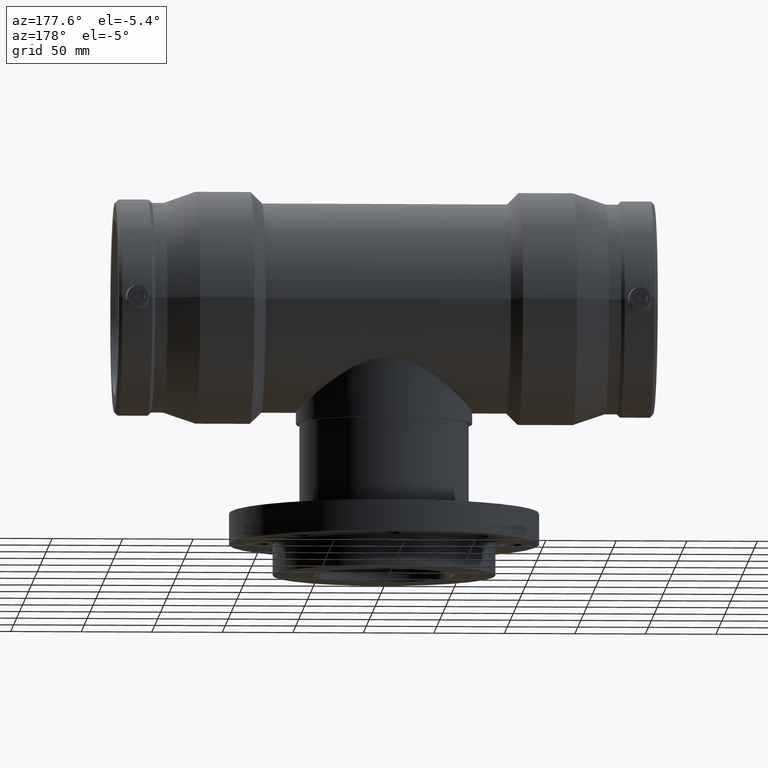
[diagram: clean part render]
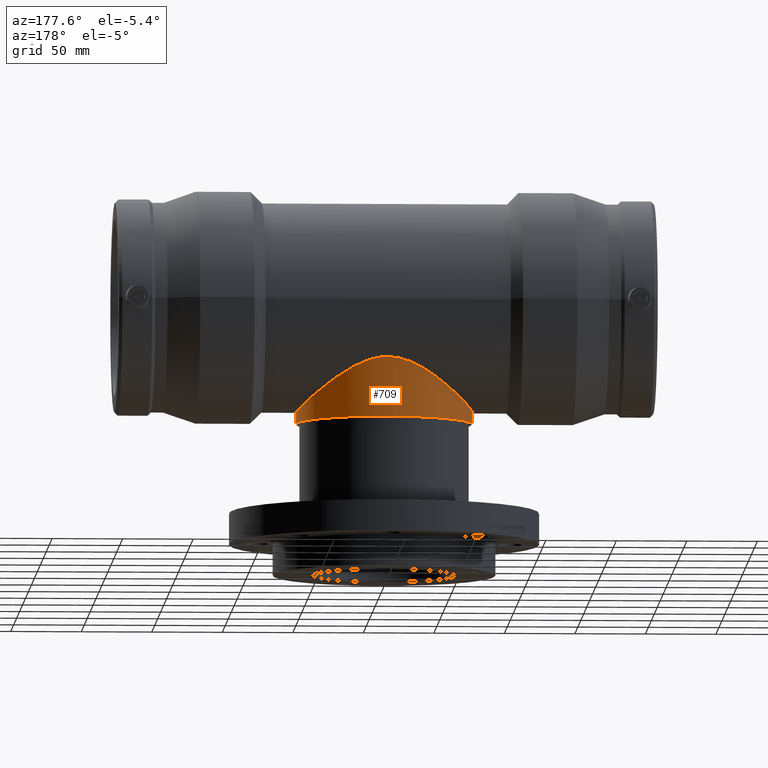
[diagram: same view with one face highlighted and labeled with its STEP entity id]
A machine part, auxiliary view. The second image highlights one B-rep face of the part: STEP entity #709.
In plain terms, the highlighted cylindrical surface (bore or boss wall) has radius 62.5 mm, axis along (-0, 0, -1).
Its self-contained STEP definition (entity closure, byte-faithful):
#53=FACE_BOUND('',#295,.T.);
#138=CIRCLE('',#788,62.5);
#194=CYLINDRICAL_SURFACE('',#787,62.5);
#225=FACE_OUTER_BOUND('',#294,.T.);
#294=EDGE_LOOP('',(#580));
#295=EDGE_LOOP('',(#581));
#416=B_SPLINE_CURVE_WITH_KNOTS('',3,(#1461,#1462,#1463,#1464,#1465,#1466,
#1467,#1468,#1469,#1470,#1471,#1472,#1473,#1474,#1475,#1476,#1477,#1478,
#1479,#1480,#1481,#1482,#1483,#1484,#1485,#1486,#1487,#1488,#1489,#1490,
#1491,#1492,#1493,#1494,#1495,#1496,#1497,#1498,#1499,#1500,#1501,#1502,
#1503,#1504,#1505,#1506,#1507,#1508,#1509,#1510,#1511,#1512,#1513,#1514,
#1515,#1516,#1517,#1518,#1519,#1520,#1521,#1522,#1523,#1524,#1525,#1526),
 .UNSPECIFIED.,.T.,.F.,(4,2,2,2,2,2,2,2,2,2,2,2,2,2,2,2,2,2,2,2,2,2,2,2,
2,2,2,2,2,2,2,2,4),(0.,1.30743169333684,2.61486338667368,3.92229508001052,
5.22972677334736,6.48023438585292,7.73074199835848,8.98124961086404,10.2317572233696,
11.4822648358752,12.7327724483807,13.9832800608863,15.2337876733918,16.5412193667287,
17.8486510600655,19.1560827534024,20.4635144467392,21.770946140076,23.0783778334129,
24.3858095267497,25.6932412200866,26.9437488325921,28.1942564450977,29.4447640576032,
30.6952716701088,31.9457792826144,33.1962868951199,34.4467945076255,35.697302120131,
37.0047338134679,38.3121655068047,39.6195972001416,40.9270288934784),
 .UNSPECIFIED.);
#438=VERTEX_POINT('',#1458);
#439=VERTEX_POINT('',#1460);
#508=EDGE_CURVE('',#438,#438,#138,.T.);
#509=EDGE_CURVE('',#439,#439,#416,.T.);
#580=ORIENTED_EDGE('',*,*,#508,.F.);
#581=ORIENTED_EDGE('',*,*,#509,.F.);
#709=ADVANCED_FACE('',(#225,#53),#194,.T.);
#787=AXIS2_PLACEMENT_3D('',#1457,#939,#940);
#788=AXIS2_PLACEMENT_3D('',#1459,#941,#942);
#939=DIRECTION('center_axis',(-1.22464679914735E-16,0.,-1.));
#940=DIRECTION('ref_axis',(-1.,0.,0.));
#941=DIRECTION('center_axis',(-1.22464679914735E-16,0.,-1.));
#942=DIRECTION('ref_axis',(1.,0.,-1.22464679914735E-16));
#1457=CARTESIAN_POINT('Origin',(-5.05166804648283E-15,0.,-41.25));
#1458=CARTESIAN_POINT('',(-62.5,0.,-82.5));
#1459=CARTESIAN_POINT('Origin',(-1.01033360929657E-14,0.,-82.5));
#1460=CARTESIAN_POINT('',(-4.9960036108132E-15,62.5,-40.0850657976259));
#1461=CARTESIAN_POINT('Ctrl Pts',(-4.9960036108132E-15,62.5,-40.0850657976259));
#1462=CARTESIAN_POINT('Ctrl Pts',(-4.35810564445614,62.5,-40.0850657976259));
#1463=CARTESIAN_POINT('Ctrl Pts',(-8.61141923070197,62.0450726383773,-40.8133125281188));
#1464=CARTESIAN_POINT('Ctrl Pts',(-16.8027069445983,60.3441515226816,-43.2885769230349));
#1465=CARTESIAN_POINT('Ctrl Pts',(-20.7448242866051,59.0974616377483,-45.0213830838224));
#1466=CARTESIAN_POINT('Ctrl Pts',(-28.2433468762901,55.9032300389323,-48.9312162090436));
#1467=CARTESIAN_POINT('Ctrl Pts',(-31.8012251154729,53.9527214558474,-51.1072065276312));
#1468=CARTESIAN_POINT('Ctrl Pts',(-38.4124655741652,49.4640936166533,-55.463016143902));
#1469=CARTESIAN_POINT('Ctrl Pts',(-41.4642942753732,46.9240533729452,-57.643183096619));
#1470=CARTESIAN_POINT('Ctrl Pts',(-46.8051975391096,41.5831501092089,-61.5992037000192));
#1471=CARTESIAN_POINT('Ctrl Pts',(-49.3126232784044,38.6061387825884,-63.534503012959));
#1472=CARTESIAN_POINT('Ctrl Pts',(-53.8213566728786,32.0223411628865,-67.0942373950831));
#1473=CARTESIAN_POINT('Ctrl Pts',(-55.8226637296755,28.4149580039061,-68.7175691966414));
#1474=CARTESIAN_POINT('Ctrl Pts',(-59.0980644120951,20.7605058308742,-71.4038915316662));
#1475=CARTESIAN_POINT('Ctrl Pts',(-60.3750450987947,16.704287002713,-72.4688998830878));
#1476=CARTESIAN_POINT('Ctrl Pts',(-62.0763953638244,8.40835381082281,-73.8923151684768));
#1477=CARTESIAN_POINT('Ctrl Pts',(-62.5,4.16835870835187,-74.25));
#1478=CARTESIAN_POINT('Ctrl Pts',(-62.5,-4.16835870835187,-74.25));
#1479=CARTESIAN_POINT('Ctrl Pts',(-62.0763953638244,-8.40835381082281,-73.8923151684768));
#1480=CARTESIAN_POINT('Ctrl Pts',(-60.3750450987947,-16.704287002713,-72.4688998830878));
#1481=CARTESIAN_POINT('Ctrl Pts',(-59.0980644120951,-20.7605058308742,-71.4038915316662));
#1482=CARTESIAN_POINT('Ctrl Pts',(-55.8226637296755,-28.4149580039061,-68.7175691966414));
#1483=CARTESIAN_POINT('Ctrl Pts',(-53.8213566728786,-32.0223411628865,-67.0942373950831));
#1484=CARTESIAN_POINT('Ctrl Pts',(-49.3126232784044,-38.6061387825884,-63.534503012959));
#1485=CARTESIAN_POINT('Ctrl Pts',(-46.8051975391096,-41.5831501092089,-61.5992037000192));
#1486=CARTESIAN_POINT('Ctrl Pts',(-41.4642942753732,-46.9240533729452,-57.643183096619));
#1487=CARTESIAN_POINT('Ctrl Pts',(-38.4124655741652,-49.4640936166534,-55.463016143902));
#1488=CARTESIAN_POINT('Ctrl Pts',(-31.8012251154729,-53.9527214558474,-51.1072065276312));
#1489=CARTESIAN_POINT('Ctrl Pts',(-28.2433468762901,-55.9032300389323,-48.9312162090436));
#1490=CARTESIAN_POINT('Ctrl Pts',(-20.7448242866051,-59.0974616377483,-45.0213830838224));
#1491=CARTESIAN_POINT('Ctrl Pts',(-16.8027069445983,-60.3441515226816,-43.2885769230349));
#1492=CARTESIAN_POINT('Ctrl Pts',(-8.61141923070196,-62.0450726383773,-40.8133125281188));
#1493=CARTESIAN_POINT('Ctrl Pts',(-4.35810564445613,-62.5,-40.0850657976259));
#1494=CARTESIAN_POINT('Ctrl Pts',(4.35810564445612,-62.5,-40.0850657976259));
#1495=CARTESIAN_POINT('Ctrl Pts',(8.61141923070196,-62.0450726383773,-40.8133125281188));
#1496=CARTESIAN_POINT('Ctrl Pts',(16.8027069445983,-60.3441515226816,-43.2885769230349));
#1497=CARTESIAN_POINT('Ctrl Pts',(20.7448242866051,-59.0974616377483,-45.0213830838224));
#1498=CARTESIAN_POINT('Ctrl Pts',(28.2433468762901,-55.9032300389323,-48.9312162090436));
#1499=CARTESIAN_POINT('Ctrl Pts',(31.8012251154729,-53.9527214558474,-51.1072065276312));
#1500=CARTESIAN_POINT('Ctrl Pts',(38.4124655741652,-49.4640936166534,-55.463016143902));
#1501=CARTESIAN_POINT('Ctrl Pts',(41.4642942753732,-46.9240533729452,-57.643183096619));
#1502=CARTESIAN_POINT('Ctrl Pts',(46.8051975391095,-41.5831501092089,-61.5992037000192));
#1503=CARTESIAN_POINT('Ctrl Pts',(49.3126232784044,-38.6061387825884,-63.534503012959));
#1504=CARTESIAN_POINT('Ctrl Pts',(53.8213566728786,-32.0223411628865,-67.0942373950831));
#1505=CARTESIAN_POINT('Ctrl Pts',(55.8226637296755,-28.4149580039061,-68.7175691966414));
#1506=CARTESIAN_POINT('Ctrl Pts',(59.0980644120951,-20.7605058308742,-71.4038915316662));
#1507=CARTESIAN_POINT('Ctrl Pts',(60.3750450987947,-16.704287002713,-72.4688998830878));
#1508=CARTESIAN_POINT('Ctrl Pts',(62.0763953638244,-8.4083538108228,-73.8923151684768));
#1509=CARTESIAN_POINT('Ctrl Pts',(62.5,-4.16835870835187,-74.25));
#1510=CARTESIAN_POINT('Ctrl Pts',(62.5,4.16835870835186,-74.25));
#1511=CARTESIAN_POINT('Ctrl Pts',(62.0763953638244,8.4083538108228,-73.8923151684768));
#1512=CARTESIAN_POINT('Ctrl Pts',(60.3750450987947,16.7042870027129,-72.4688998830878));
#1513=CARTESIAN_POINT('Ctrl Pts',(59.0980644120951,20.7605058308742,-71.4038915316662));
#1514=CARTESIAN_POINT('Ctrl Pts',(55.8226637296755,28.414958003906,-68.7175691966415));
#1515=CARTESIAN_POINT('Ctrl Pts',(53.8213566728786,32.0223411628864,-67.0942373950831));
#1516=CARTESIAN_POINT('Ctrl Pts',(49.3126232784044,38.6061387825884,-63.534503012959));
#1517=CARTESIAN_POINT('Ctrl Pts',(46.8051975391096,41.5831501092089,-61.5992037000192));
#1518=CARTESIAN_POINT('Ctrl Pts',(41.4642942753732,46.9240533729452,-57.643183096619));
#1519=CARTESIAN_POINT('Ctrl Pts',(38.4124655741651,49.4640936166534,-55.463016143902));
#1520=CARTESIAN_POINT('Ctrl Pts',(31.8012251154729,53.9527214558474,-51.1072065276312));
#1521=CARTESIAN_POINT('Ctrl Pts',(28.2433468762901,55.9032300389323,-48.9312162090436));
#1522=CARTESIAN_POINT('Ctrl Pts',(20.744824286605,59.0974616377483,-45.0213830838224));
#1523=CARTESIAN_POINT('Ctrl Pts',(16.8027069445982,60.3441515226816,-43.2885769230349));
#1524=CARTESIAN_POINT('Ctrl Pts',(8.61141923070195,62.0450726383773,-40.8133125281189));
#1525=CARTESIAN_POINT('Ctrl Pts',(4.35810564445612,62.5,-40.0850657976259));
#1526=CARTESIAN_POINT('Ctrl Pts',(-4.9960036108132E-15,62.5,-40.0850657976259));